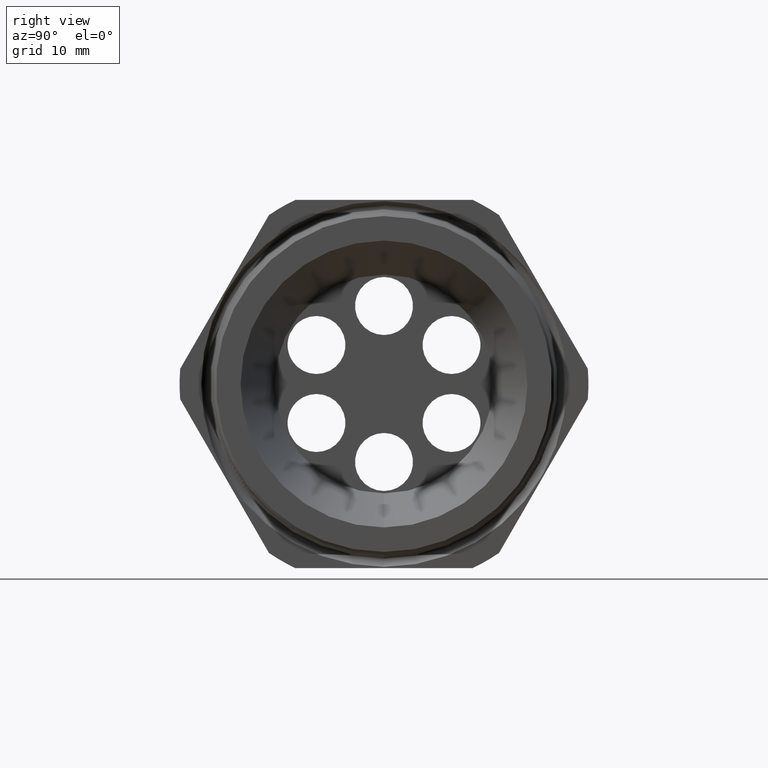
[diagram: clean part render]
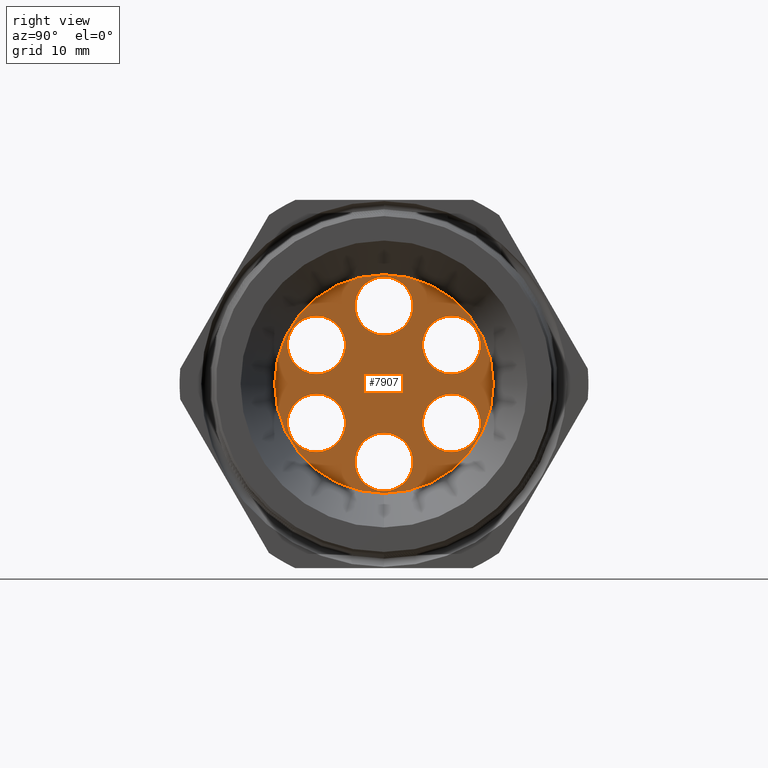
[diagram: same view with one face highlighted and labeled with its STEP entity id]
A machine part, right view. The second image highlights one B-rep face of the part: STEP entity #7907.
In plain terms, the highlighted planar face has unit normal (-1, 0, 0).
Its self-contained STEP definition (entity closure, byte-faithful):
#1949 = VERTEX_POINT ( 'NONE', #4474 ) ;
#2035 = VERTEX_POINT ( 'NONE', #4469 ) ;
#3543 = CARTESIAN_POINT ( 'NONE',  ( -1.339999999999999900, -0.3026585581145859700, -0.1747399999999992800 ) ) ;
#3549 = AXIS2_PLACEMENT_3D ( 'NONE', #3543, #4088, #4087 ) ;
#3579 = EDGE_CURVE ( 'NONE', #2035, #1949, #4548, .T. ) ;
#4087 = DIRECTION ( 'NONE',  ( 0.0000000000000000000, 0.8660254037844398200, 0.4999999999999980600 ) ) ;
#4088 = DIRECTION ( 'NONE',  ( -1.000000000000000000, 0.0000000000000000000, 0.0000000000000000000 ) ) ;
#4097 = EDGE_CURVE ( 'NONE', #4111, #7826, #4623, .T. ) ;
#4111 = VERTEX_POINT ( 'NONE', #4679 ) ;
#4469 = CARTESIAN_POINT ( 'NONE',  ( -1.339999999999999900, -0.3026585581145848100, 0.04474000000000140400 ) ) ;
#4474 = CARTESIAN_POINT ( 'NONE',  ( -1.339999999999999900, -0.3026585581145848100, 0.3047400000000014000 ) ) ;
#4544 = DIRECTION ( 'NONE',  ( 0.0000000000000000000, 0.8660254037844361500, -0.5000000000000040000 ) ) ;
#4545 = DIRECTION ( 'NONE',  ( -1.000000000000000000, 0.0000000000000000000, 0.0000000000000000000 ) ) ;
#4546 = CARTESIAN_POINT ( 'NONE',  ( -1.339999999999999900, -0.3026585581145848100, 0.1747400000000013900 ) ) ;
#4547 = AXIS2_PLACEMENT_3D ( 'NONE', #4546, #4545, #4544 ) ;
#4548 = CIRCLE ( 'NONE', #4547, 0.1300000000000000300 ) ;
#4623 = CIRCLE ( 'NONE', #3549, 0.1300000000000000000 ) ;
#4679 = CARTESIAN_POINT ( 'NONE',  ( -1.339999999999999900, -0.3026585581145859700, -0.3047399999999992900 ) ) ;
#5368 = CARTESIAN_POINT ( 'NONE',  ( -1.339999999999999900, 2.456327618469928800E-015, 0.2194799999999999300 ) ) ;
#5369 = CARTESIAN_POINT ( 'NONE',  ( -1.339999999999999900, 2.440407210081013500E-015, 0.4794799999999999100 ) ) ;
#5374 = DIRECTION ( 'NONE',  ( 0.0000000000000000000, -6.982966722218764900E-015, -1.000000000000000000 ) ) ;
#5375 = DIRECTION ( 'NONE',  ( -1.000000000000000000, 0.0000000000000000000, 0.0000000000000000000 ) ) ;
#5376 = CARTESIAN_POINT ( 'NONE',  ( -1.339999999999999900, 2.440407210081013500E-015, 0.3494799999999999000 ) ) ;
#5377 = AXIS2_PLACEMENT_3D ( 'NONE', #5376, #5375, #5374 ) ;
#5378 = CIRCLE ( 'NONE', #5377, 0.1299999999999999800 ) ;
#5432 = CARTESIAN_POINT ( 'NONE',  ( -1.339999999999999900, 0.3026585581145871400, 0.3047399999999971800 ) ) ;
#5443 = CARTESIAN_POINT ( 'NONE',  ( -1.339999999999999900, 0.3026585581145871400, 0.04473999999999715000 ) ) ;
#5467 = DIRECTION ( 'NONE',  ( 0.0000000000000000000, -0.8660254037844432600, -0.4999999999999919000 ) ) ;
#5468 = DIRECTION ( 'NONE',  ( -1.000000000000000000, 0.0000000000000000000, 0.0000000000000000000 ) ) ;
#5469 = AXIS2_PLACEMENT_3D ( 'NONE', #5476, #5468, #5467 ) ;
#5470 = CIRCLE ( 'NONE', #5469, 0.1300000000000000000 ) ;
#5476 = CARTESIAN_POINT ( 'NONE',  ( -1.339999999999999900, 0.3026585581145871400, 0.1747399999999971800 ) ) ;
#5486 = CIRCLE ( 'NONE', #5549, 0.1300000000000000000 ) ;
#5490 = CARTESIAN_POINT ( 'NONE',  ( -1.339999999999999900, 0.3026585581145835300, -0.04474000000000348500 ) ) ;
#5491 = CARTESIAN_POINT ( 'NONE',  ( -1.339999999999999900, 0.3026585581145835300, -0.3047400000000035100 ) ) ;
#5546 = DIRECTION ( 'NONE',  ( 0.0000000000000000000, -0.8660254037844327100, 0.5000000000000101000 ) ) ;
#5547 = DIRECTION ( 'NONE',  ( -1.000000000000000000, 0.0000000000000000000, 0.0000000000000000000 ) ) ;
#5548 = CARTESIAN_POINT ( 'NONE',  ( -1.339999999999999900, 0.3026585581145835300, -0.1747400000000034800 ) ) ;
#5549 = AXIS2_PLACEMENT_3D ( 'NONE', #5548, #5547, #5546 ) ;
#5812 = CARTESIAN_POINT ( 'NONE',  ( -1.339999999999999900, 6.000769315822029800E-017, -0.4899999999999999900 ) ) ;
#5813 = CARTESIAN_POINT ( 'NONE',  ( -1.339999999999999900, 0.0000000000000000000, 0.4899999999999999900 ) ) ;
#5818 = DIRECTION ( 'NONE',  ( 0.0000000000000000000, 0.0000000000000000000, 1.000000000000000000 ) ) ;
#5819 = DIRECTION ( 'NONE',  ( -1.000000000000000000, 0.0000000000000000000, 0.0000000000000000000 ) ) ;
#5820 = CARTESIAN_POINT ( 'NONE',  ( -1.339999999999999900, 0.0000000000000000000, 0.0000000000000000000 ) ) ;
#5821 = AXIS2_PLACEMENT_3D ( 'NONE', #5820, #5819, #5818 ) ;
#5822 = CIRCLE ( 'NONE', #5821, 0.4899999999999999900 ) ;
#5866 = CARTESIAN_POINT ( 'NONE',  ( -1.339999999999999900, 1.592040838891559700E-017, -0.4794799999999999100 ) ) ;
#5867 = CARTESIAN_POINT ( 'NONE',  ( -1.339999999999999900, 0.0000000000000000000, -0.2194799999999999500 ) ) ;
#5934 = CARTESIAN_POINT ( 'NONE',  ( -1.339999999999999900, -0.3026585581145859700, -0.04473999999999926600 ) ) ;
#5990 = DIRECTION ( 'NONE',  ( 0.0000000000000000000, 0.0000000000000000000, 1.000000000000000000 ) ) ;
#5991 = DIRECTION ( 'NONE',  ( -1.000000000000000000, 0.0000000000000000000, 0.0000000000000000000 ) ) ;
#5992 = CARTESIAN_POINT ( 'NONE',  ( -1.339999999999999900, 0.0000000000000000000, -0.3494799999999999000 ) ) ;
#5993 = AXIS2_PLACEMENT_3D ( 'NONE', #5992, #5991, #5990 ) ;
#5994 = CIRCLE ( 'NONE', #5993, 0.1299999999999999800 ) ;
#6061 = DIRECTION ( 'NONE',  ( -1.000000000000000000, 0.0000000000000000000, 0.0000000000000000000 ) ) ;
#6062 = CARTESIAN_POINT ( 'NONE',  ( -1.339999999999999900, -0.3026585581145859700, -0.1747399999999992800 ) ) ;
#6063 = AXIS2_PLACEMENT_3D ( 'NONE', #6062, #6061, #6125 ) ;
#6064 = CIRCLE ( 'NONE', #6063, 0.1300000000000000000 ) ;
#6065 = DIRECTION ( 'NONE',  ( 0.0000000000000000000, -6.982966722218764900E-015, -1.000000000000000000 ) ) ;
#6066 = DIRECTION ( 'NONE',  ( -1.000000000000000000, 0.0000000000000000000, 0.0000000000000000000 ) ) ;
#6067 = CARTESIAN_POINT ( 'NONE',  ( -1.339999999999999900, 2.440407210081013500E-015, 0.3494799999999999000 ) ) ;
#6068 = AXIS2_PLACEMENT_3D ( 'NONE', #6067, #6066, #6065 ) ;
#6069 = CIRCLE ( 'NONE', #6068, 0.1299999999999999800 ) ;
#6070 = DIRECTION ( 'NONE',  ( 0.0000000000000000000, 0.0000000000000000000, 1.000000000000000000 ) ) ;
#6071 = DIRECTION ( 'NONE',  ( -1.000000000000000000, 0.0000000000000000000, 0.0000000000000000000 ) ) ;
#6072 = CARTESIAN_POINT ( 'NONE',  ( -1.339999999999999900, 0.0000000000000000000, 0.0000000000000000000 ) ) ;
#6073 = AXIS2_PLACEMENT_3D ( 'NONE', #6072, #6071, #6070 ) ;
#6074 = CIRCLE ( 'NONE', #6073, 0.4899999999999999900 ) ;
#6093 = DIRECTION ( 'NONE',  ( 0.0000000000000000000, 0.8660254037844361500, -0.5000000000000040000 ) ) ;
#6094 = DIRECTION ( 'NONE',  ( -1.000000000000000000, 0.0000000000000000000, 0.0000000000000000000 ) ) ;
#6095 = CARTESIAN_POINT ( 'NONE',  ( -1.339999999999999900, -0.3026585581145848100, 0.1747400000000013900 ) ) ;
#6096 = AXIS2_PLACEMENT_3D ( 'NONE', #6095, #6094, #6093 ) ;
#6097 = CIRCLE ( 'NONE', #6096, 0.1300000000000000300 ) ;
#6098 = DIRECTION ( 'NONE',  ( 0.0000000000000000000, 0.0000000000000000000, 1.000000000000000000 ) ) ;
#6099 = DIRECTION ( 'NONE',  ( -1.000000000000000000, 0.0000000000000000000, 0.0000000000000000000 ) ) ;
#6100 = CARTESIAN_POINT ( 'NONE',  ( -1.339999999999999900, 0.0000000000000000000, 0.0000000000000000000 ) ) ;
#6101 = AXIS2_PLACEMENT_3D ( 'NONE', #6100, #6099, #6098 ) ;
#6102 = PLANE ( 'NONE',  #6101 ) ;
#6103 = FACE_OUTER_BOUND ( 'NONE', #8091, .T. ) ;
#6104 = FACE_BOUND ( 'NONE', #8019, .T. ) ;
#6105 = FACE_BOUND ( 'NONE', #8041, .T. ) ;
#6106 = FACE_BOUND ( 'NONE', #7888, .T. ) ;
#6107 = FACE_BOUND ( 'NONE', #7890, .T. ) ;
#6108 = FACE_BOUND ( 'NONE', #7887, .T. ) ;
#6109 = FACE_BOUND ( 'NONE', #7909, .T. ) ;
#6110 = DIRECTION ( 'NONE',  ( 0.0000000000000000000, -0.8660254037844432600, -0.4999999999999919000 ) ) ;
#6111 = DIRECTION ( 'NONE',  ( -1.000000000000000000, 0.0000000000000000000, 0.0000000000000000000 ) ) ;
#6112 = CARTESIAN_POINT ( 'NONE',  ( -1.339999999999999900, 0.3026585581145871400, 0.1747399999999971800 ) ) ;
#6113 = AXIS2_PLACEMENT_3D ( 'NONE', #6112, #6111, #6110 ) ;
#6114 = CIRCLE ( 'NONE', #6113, 0.1300000000000000000 ) ;
#6115 = DIRECTION ( 'NONE',  ( 0.0000000000000000000, -0.8660254037844327100, 0.5000000000000101000 ) ) ;
#6116 = DIRECTION ( 'NONE',  ( -1.000000000000000000, 0.0000000000000000000, 0.0000000000000000000 ) ) ;
#6117 = CARTESIAN_POINT ( 'NONE',  ( -1.339999999999999900, 0.3026585581145835300, -0.1747400000000034800 ) ) ;
#6118 = AXIS2_PLACEMENT_3D ( 'NONE', #6117, #6116, #6115 ) ;
#6119 = CIRCLE ( 'NONE', #6118, 0.1300000000000000000 ) ;
#6125 = DIRECTION ( 'NONE',  ( 0.0000000000000000000, 0.8660254037844398200, 0.4999999999999980600 ) ) ;
#6128 = DIRECTION ( 'NONE',  ( 0.0000000000000000000, 0.0000000000000000000, 1.000000000000000000 ) ) ;
#6129 = DIRECTION ( 'NONE',  ( -1.000000000000000000, 0.0000000000000000000, 0.0000000000000000000 ) ) ;
#6130 = CARTESIAN_POINT ( 'NONE',  ( -1.339999999999999900, 0.0000000000000000000, -0.3494799999999999000 ) ) ;
#6131 = AXIS2_PLACEMENT_3D ( 'NONE', #6130, #6129, #6128 ) ;
#6132 = CIRCLE ( 'NONE', #6131, 0.1299999999999999800 ) ;
#7513 = EDGE_CURVE ( 'NONE', #7520, #7519, #5378, .T. ) ;
#7519 = VERTEX_POINT ( 'NONE', #5369 ) ;
#7520 = VERTEX_POINT ( 'NONE', #5368 ) ;
#7545 = VERTEX_POINT ( 'NONE', #5443 ) ;
#7554 = VERTEX_POINT ( 'NONE', #5432 ) ;
#7564 = EDGE_CURVE ( 'NONE', #7545, #7554, #5470, .T. ) ;
#7589 = VERTEX_POINT ( 'NONE', #5491 ) ;
#7590 = VERTEX_POINT ( 'NONE', #5490 ) ;
#7594 = EDGE_CURVE ( 'NONE', #7589, #7590, #5486, .T. ) ;
#7756 = EDGE_CURVE ( 'NONE', #7758, #7760, #5822, .T. ) ;
#7758 = VERTEX_POINT ( 'NONE', #5813 ) ;
#7760 = VERTEX_POINT ( 'NONE', #5812 ) ;
#7765 = VERTEX_POINT ( 'NONE', #5867 ) ;
#7767 = VERTEX_POINT ( 'NONE', #5866 ) ;
#7826 = VERTEX_POINT ( 'NONE', #5934 ) ;
#7829 = EDGE_CURVE ( 'NONE', #7767, #7765, #5994, .T. ) ;
#7878 = ORIENTED_EDGE ( 'NONE', *, *, #3579, .T. ) ;
#7883 = ORIENTED_EDGE ( 'NONE', *, *, #7594, .T. ) ;
#7887 = EDGE_LOOP ( 'NONE', ( #7910, #7892 ) ) ;
#7888 = EDGE_LOOP ( 'NONE', ( #7906, #7878 ) ) ;
#7889 = ORIENTED_EDGE ( 'NONE', *, *, #7894, .T. ) ;
#7890 = EDGE_LOOP ( 'NONE', ( #7889, #7897 ) ) ;
#7891 = EDGE_CURVE ( 'NONE', #7760, #7758, #6074, .T. ) ;
#7892 = ORIENTED_EDGE ( 'NONE', *, *, #7564, .T. ) ;
#7894 = EDGE_CURVE ( 'NONE', #7519, #7520, #6069, .T. ) ;
#7896 = EDGE_CURVE ( 'NONE', #7826, #4111, #6064, .T. ) ;
#7897 = ORIENTED_EDGE ( 'NONE', *, *, #7513, .T. ) ;
#7902 = EDGE_CURVE ( 'NONE', #7590, #7589, #6119, .T. ) ;
#7904 = EDGE_CURVE ( 'NONE', #7554, #7545, #6114, .T. ) ;
#7905 = ORIENTED_EDGE ( 'NONE', *, *, #7902, .T. ) ;
#7906 = ORIENTED_EDGE ( 'NONE', *, *, #7908, .T. ) ;
#7907 = ADVANCED_FACE ( 'NONE', ( #6109, #6108, #6107, #6106, #6105, #6104, #6103 ), #6102, .F. ) ;
#7908 = EDGE_CURVE ( 'NONE', #1949, #2035, #6097, .T. ) ;
#7909 = EDGE_LOOP ( 'NONE', ( #7905, #7883 ) ) ;
#7910 = ORIENTED_EDGE ( 'NONE', *, *, #7904, .T. ) ;
#7922 = EDGE_CURVE ( 'NONE', #7765, #7767, #6132, .T. ) ;
#7929 = ORIENTED_EDGE ( 'NONE', *, *, #7896, .T. ) ;
#8011 = ORIENTED_EDGE ( 'NONE', *, *, #7829, .T. ) ;
#8019 = EDGE_LOOP ( 'NONE', ( #8028, #8011 ) ) ;
#8021 = ORIENTED_EDGE ( 'NONE', *, *, #7756, .F. ) ;
#8027 = ORIENTED_EDGE ( 'NONE', *, *, #4097, .T. ) ;
#8028 = ORIENTED_EDGE ( 'NONE', *, *, #7922, .T. ) ;
#8037 = ORIENTED_EDGE ( 'NONE', *, *, #7891, .F. ) ;
#8041 = EDGE_LOOP ( 'NONE', ( #7929, #8027 ) ) ;
#8091 = EDGE_LOOP ( 'NONE', ( #8021, #8037 ) ) ;